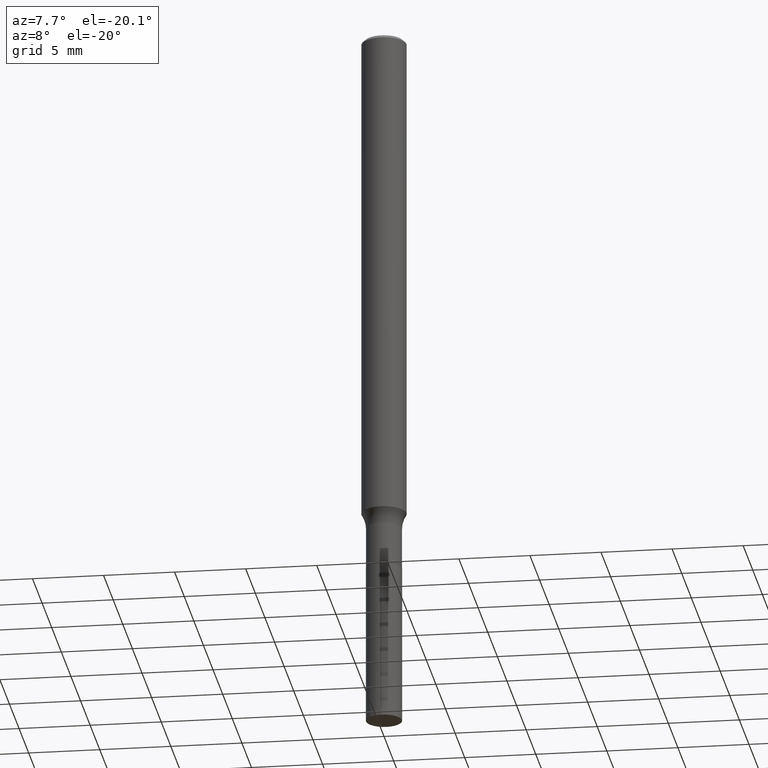
[diagram: clean part render]
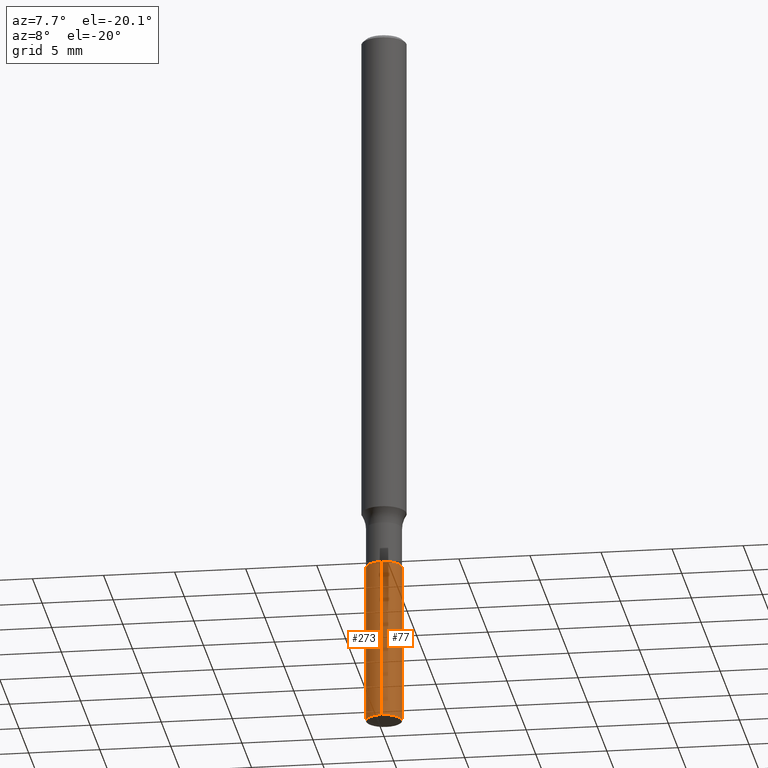
[diagram: same view with one multi-face feature highlighted, each face labeled with its STEP entity id]
A machine part, auxiliary view. The highlighted faces form ONE feature: a constant-radius fillet chain: 2 tangent blend faces with common blend radius 1.2636 mm. The faces share edges in the B-rep.
Their STEP definitions:
[1] entity #77 (Cylinder):
#6 = EDGE_LOOP ( 'NONE', ( #15, #274, #393, #312 ) ) ;
#15 = ORIENTED_EDGE ( 'NONE', *, *, #380, .T. ) ;
#24 = CARTESIAN_POINT ( 'NONE',  ( 3.534950110406982770E-16, 0.04974999999999305672, -1.984313885253270904 ) ) ;
#52 = VERTEX_POINT ( 'NONE', #214 ) ;
#53 = VERTEX_POINT ( 'NONE', #24 ) ;
#66 = DIRECTION ( 'NONE',  ( -2.443134818012594295E-29, 3.494823742748583063E-15, 1.000000000000000000 ) ) ;
#77 = ADVANCED_FACE ( 'NONE', ( #362 ), #132, .T. ) ;
#80 = DIRECTION ( 'NONE',  ( -6.982962677686266711E-15, -1.000000000000000000, 5.491151746058819933E-15 ) ) ;
#101 = CARTESIAN_POINT ( 'NONE',  ( 3.758685555106554828E-29, -5.366406817801914963E-15, -1.536999999999999922 ) ) ;
#116 = LINE ( 'NONE', #166, #204 ) ;
#117 = CARTESIAN_POINT ( 'NONE',  ( -3.474023932148541639E-16, -0.04975000000000537326, -1.536999999999999700 ) ) ;
#131 = VECTOR ( 'NONE', #298, 39.37007874015748143 ) ;
#132 = CYLINDRICAL_SURFACE ( 'NONE', #441, 0.04975000000000000255 ) ;
#153 = EDGE_CURVE ( 'NONE', #53, #52, #232, .T. ) ;
#156 = CARTESIAN_POINT ( 'NONE',  ( 4.851533682749310383E-29, -6.929690004446159689E-15, -1.984313885253270460 ) ) ;
#159 = CARTESIAN_POINT ( 'NONE',  ( 3.758685555106554828E-29, -5.366406817801914963E-15, -1.536999999999999922 ) ) ;
#162 = AXIS2_PLACEMENT_3D ( 'NONE', #156, #307, #465 ) ;
#166 = CARTESIAN_POINT ( 'NONE',  ( -3.474023932148541639E-16, -0.04975000000000537326, -1.536999999999999700 ) ) ;
#175 = DIRECTION ( 'NONE',  ( -6.982962677686266711E-15, -1.000000000000000000, 5.491151746058819933E-15 ) ) ;
#176 = CIRCLE ( 'NONE', #333, 0.04975000000000000255 ) ;
#187 = CARTESIAN_POINT ( 'NONE',  ( 3.534950110406874301E-16, 0.04974999999999463185, -1.537000000000000366 ) ) ;
#200 = CARTESIAN_POINT ( 'NONE',  ( -3.474023932148430705E-16, -0.04975000000000692063, -1.984313885253270238 ) ) ;
#204 = VECTOR ( 'NONE', #268, 39.37007874015748143 ) ;
#214 = CARTESIAN_POINT ( 'NONE',  ( 3.534950110406984742E-16, 0.04974999999999463185, -1.537000000000000366 ) ) ;
#232 = LINE ( 'NONE', #187, #131 ) ;
#268 = DIRECTION ( 'NONE',  ( -2.443134818012594295E-29, 3.494823742748583063E-15, 1.000000000000000000 ) ) ;
#274 = ORIENTED_EDGE ( 'NONE', *, *, #153, .T. ) ;
#285 = EDGE_CURVE ( 'NONE', #394, #292, #116, .T. ) ;
#292 = VERTEX_POINT ( 'NONE', #117 ) ;
#298 = DIRECTION ( 'NONE',  ( -2.443134818012594295E-29, 3.494823742748583063E-15, 1.000000000000000000 ) ) ;
#307 = DIRECTION ( 'NONE',  ( -2.443134818012594295E-29, 3.494823742748583063E-15, 1.000000000000000000 ) ) ;
#312 = ORIENTED_EDGE ( 'NONE', *, *, #285, .F. ) ;
#317 = EDGE_CURVE ( 'NONE', #292, #52, #176, .T. ) ;
#333 = AXIS2_PLACEMENT_3D ( 'NONE', #159, #492, #80 ) ;
#362 = FACE_OUTER_BOUND ( 'NONE', #6, .T. ) ;
#380 = EDGE_CURVE ( 'NONE', #394, #53, #483, .T. ) ;
#393 = ORIENTED_EDGE ( 'NONE', *, *, #317, .F. ) ;
#394 = VERTEX_POINT ( 'NONE', #200 ) ;
#441 = AXIS2_PLACEMENT_3D ( 'NONE', #101, #66, #175 ) ;
#465 = DIRECTION ( 'NONE',  ( -6.982962677686266711E-15, -1.000000000000000000, 5.491151746058819933E-15 ) ) ;
#483 = CIRCLE ( 'NONE', #162, 0.04975000000000000255 ) ;
#492 = DIRECTION ( 'NONE',  ( -2.443134818012594295E-29, 3.494823742748583063E-15, 1.000000000000000000 ) ) ;
[2] entity #273 (Cylinder):
#24 = CARTESIAN_POINT ( 'NONE',  ( 3.534950110406982770E-16, 0.04974999999999305672, -1.984313885253270904 ) ) ;
#42 = ORIENTED_EDGE ( 'NONE', *, *, #285, .T. ) ;
#45 = ORIENTED_EDGE ( 'NONE', *, *, #234, .F. ) ;
#46 = DIRECTION ( 'NONE',  ( -2.443134818012594295E-29, 3.494823742748583063E-15, 1.000000000000000000 ) ) ;
#48 = AXIS2_PLACEMENT_3D ( 'NONE', #279, #244, #49 ) ;
#49 = DIRECTION ( 'NONE',  ( -6.982962677686266711E-15, -1.000000000000000000, 5.491151746058819933E-15 ) ) ;
#52 = VERTEX_POINT ( 'NONE', #214 ) ;
#53 = VERTEX_POINT ( 'NONE', #24 ) ;
#55 = AXIS2_PLACEMENT_3D ( 'NONE', #296, #107, #338 ) ;
#86 = ORIENTED_EDGE ( 'NONE', *, *, #410, .T. ) ;
#107 = DIRECTION ( 'NONE',  ( -2.443134818012594295E-29, 3.494823742748583063E-15, 1.000000000000000000 ) ) ;
#116 = LINE ( 'NONE', #166, #204 ) ;
#117 = CARTESIAN_POINT ( 'NONE',  ( -3.474023932148541639E-16, -0.04975000000000537326, -1.536999999999999700 ) ) ;
#131 = VECTOR ( 'NONE', #298, 39.37007874015748143 ) ;
#153 = EDGE_CURVE ( 'NONE', #53, #52, #232, .T. ) ;
#166 = CARTESIAN_POINT ( 'NONE',  ( -3.474023932148541639E-16, -0.04975000000000537326, -1.536999999999999700 ) ) ;
#187 = CARTESIAN_POINT ( 'NONE',  ( 3.534950110406874301E-16, 0.04974999999999463185, -1.537000000000000366 ) ) ;
#194 = CIRCLE ( 'NONE', #55, 0.04975000000000000255 ) ;
#200 = CARTESIAN_POINT ( 'NONE',  ( -3.474023932148430705E-16, -0.04975000000000692063, -1.984313885253270238 ) ) ;
#204 = VECTOR ( 'NONE', #268, 39.37007874015748143 ) ;
#214 = CARTESIAN_POINT ( 'NONE',  ( 3.534950110406984742E-16, 0.04974999999999463185, -1.537000000000000366 ) ) ;
#221 = CIRCLE ( 'NONE', #48, 0.04975000000000000255 ) ;
#232 = LINE ( 'NONE', #187, #131 ) ;
#234 = EDGE_CURVE ( 'NONE', #52, #292, #194, .T. ) ;
#242 = CARTESIAN_POINT ( 'NONE',  ( 3.758685555106554828E-29, -5.366406817801914963E-15, -1.536999999999999922 ) ) ;
#244 = DIRECTION ( 'NONE',  ( -2.443134818012594295E-29, 3.494823742748583063E-15, 1.000000000000000000 ) ) ;
#268 = DIRECTION ( 'NONE',  ( -2.443134818012594295E-29, 3.494823742748583063E-15, 1.000000000000000000 ) ) ;
#273 = ADVANCED_FACE ( 'NONE', ( #419 ), #311, .T. ) ;
#279 = CARTESIAN_POINT ( 'NONE',  ( 4.851533682749310383E-29, -6.929690004446159689E-15, -1.984313885253270460 ) ) ;
#285 = EDGE_CURVE ( 'NONE', #394, #292, #116, .T. ) ;
#292 = VERTEX_POINT ( 'NONE', #117 ) ;
#296 = CARTESIAN_POINT ( 'NONE',  ( 3.758685555106554828E-29, -5.366406817801914963E-15, -1.536999999999999922 ) ) ;
#298 = DIRECTION ( 'NONE',  ( -2.443134818012594295E-29, 3.494823742748583063E-15, 1.000000000000000000 ) ) ;
#304 = DIRECTION ( 'NONE',  ( -6.982962677686266711E-15, -1.000000000000000000, 5.491151746058819933E-15 ) ) ;
#311 = CYLINDRICAL_SURFACE ( 'NONE', #468, 0.04975000000000000255 ) ;
#338 = DIRECTION ( 'NONE',  ( -6.982962677686266711E-15, -1.000000000000000000, 5.491151746058819933E-15 ) ) ;
#346 = EDGE_LOOP ( 'NONE', ( #364, #86, #42, #45 ) ) ;
#364 = ORIENTED_EDGE ( 'NONE', *, *, #153, .F. ) ;
#394 = VERTEX_POINT ( 'NONE', #200 ) ;
#410 = EDGE_CURVE ( 'NONE', #53, #394, #221, .T. ) ;
#419 = FACE_OUTER_BOUND ( 'NONE', #346, .T. ) ;
#468 = AXIS2_PLACEMENT_3D ( 'NONE', #242, #46, #304 ) ;